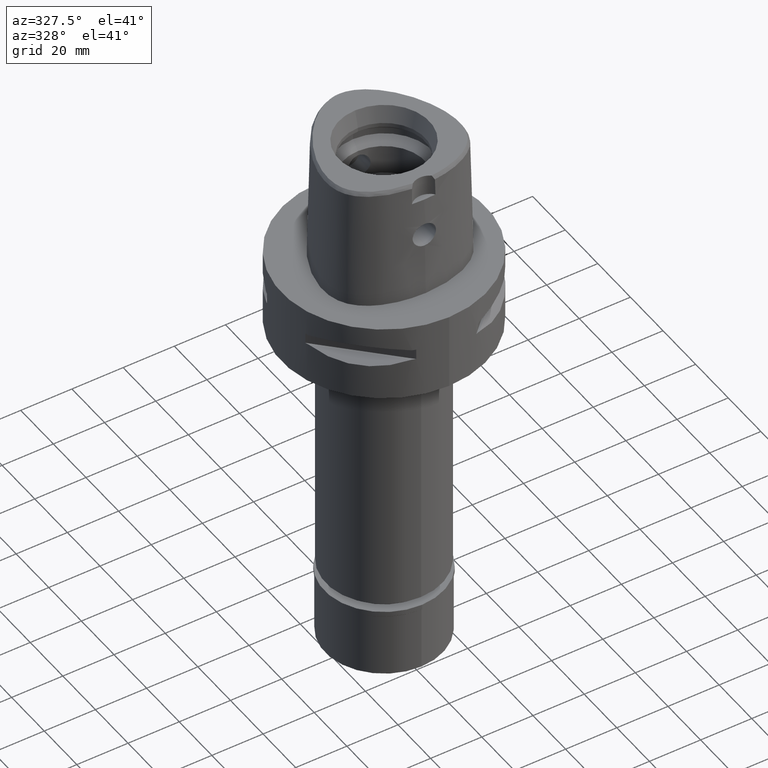
[diagram: clean part render]
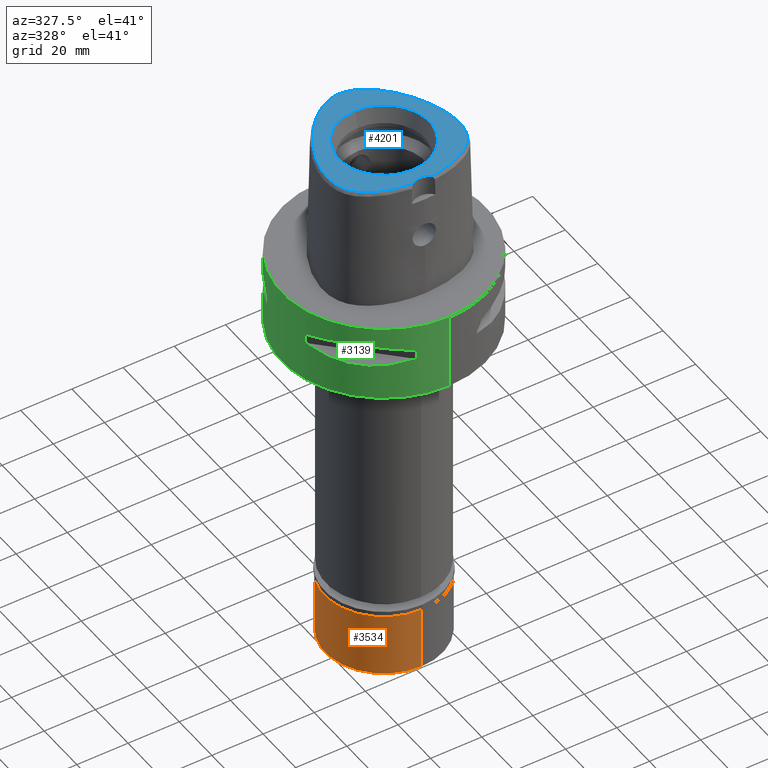
[diagram: same view with three faces highlighted in distinct colors, each labeled with its STEP entity id]
A machine part, auxiliary view with three faces highlighted in distinct colors.
Their STEP definitions:

[orange] entity #3534 — the highlighted cylindrical surface (partial cylindrical patch) has radius 23 mm, axis along (0, 0, -1).
#153 = VECTOR ( 'NONE', #3823, 1000.000000000000000 ) ;
#252 = AXIS2_PLACEMENT_3D ( 'NONE', #2304, #4308, #3142 ) ;
#295 = EDGE_CURVE ( 'NONE', #3012, #4341, #2491, .T. ) ;
#390 = VERTEX_POINT ( 'NONE', #1970 ) ;
#415 = CARTESIAN_POINT ( 'NONE',  ( 0.0000000000000000000, 0.0000000000000000000, 0.0000000000000000000 ) ) ;
#473 = LINE ( 'NONE', #1741, #826 ) ;
#526 = CARTESIAN_POINT ( 'NONE',  ( 0.0000000000000000000, -23.00000000000000000, -2.299999999999999822 ) ) ;
#645 = ORIENTED_EDGE ( 'NONE', *, *, #295, .T. ) ;
#826 = VECTOR ( 'NONE', #2498, 1000.000000000000000 ) ;
#1193 = ORIENTED_EDGE ( 'NONE', *, *, #3594, .T. ) ;
#1509 = CARTESIAN_POINT ( 'NONE',  ( 0.0000000000000000000, 23.00000000000000000, -2.299999999999999822 ) ) ;
#1608 = FACE_OUTER_BOUND ( 'NONE', #1854, .T. ) ;
#1654 = CARTESIAN_POINT ( 'NONE',  ( 0.0000000000000000000, 0.0000000000000000000, -2.299999999999999822 ) ) ;
#1741 = CARTESIAN_POINT ( 'NONE',  ( 0.0000000000000000000, -23.00000000000000000, -2.299999999999999822 ) ) ;
#1854 = EDGE_LOOP ( 'NONE', ( #645, #2657, #1193, #2582 ) ) ;
#1970 = CARTESIAN_POINT ( 'NONE',  ( 0.0000000000000000000, 23.00000000000000000, -2.299999999999999822 ) ) ;
#1996 = DIRECTION ( 'NONE',  ( 0.0000000000000000000, 0.0000000000000000000, -1.000000000000000000 ) ) ;
#2262 = LINE ( 'NONE', #1509, #153 ) ;
#2304 = CARTESIAN_POINT ( 'NONE',  ( 0.0000000000000000000, 0.0000000000000000000, -27.19999999999999929 ) ) ;
#2402 = VERTEX_POINT ( 'NONE', #526 ) ;
#2407 = DIRECTION ( 'NONE',  ( 0.0000000000000000000, -1.000000000000000000, 0.0000000000000000000 ) ) ;
#2491 = CIRCLE ( 'NONE', #252, 23.00000000000000000 ) ;
#2498 = DIRECTION ( 'NONE',  ( 0.0000000000000000000, 0.0000000000000000000, -1.000000000000000000 ) ) ;
#2582 = ORIENTED_EDGE ( 'NONE', *, *, #4310, .T. ) ;
#2657 = ORIENTED_EDGE ( 'NONE', *, *, #4592, .F. ) ;
#3012 = VERTEX_POINT ( 'NONE', #3733 ) ;
#3142 = DIRECTION ( 'NONE',  ( 0.0000000000000000000, 1.000000000000000000, 0.0000000000000000000 ) ) ;
#3172 = DIRECTION ( 'NONE',  ( 0.0000000000000000000, 0.0000000000000000000, -1.000000000000000000 ) ) ;
#3197 = DIRECTION ( 'NONE',  ( 0.0000000000000000000, -1.000000000000000000, 0.0000000000000000000 ) ) ;
#3226 = AXIS2_PLACEMENT_3D ( 'NONE', #415, #1996, #3197 ) ;
#3384 = AXIS2_PLACEMENT_3D ( 'NONE', #1654, #3172, #2407 ) ;
#3427 = CARTESIAN_POINT ( 'NONE',  ( 0.0000000000000000000, -23.00000000000000000, -27.19999999999999929 ) ) ;
#3534 = ADVANCED_FACE ( 'NONE', ( #1608 ), #4339, .T. ) ;
#3594 = EDGE_CURVE ( 'NONE', #2402, #390, #4550, .T. ) ;
#3733 = CARTESIAN_POINT ( 'NONE',  ( 0.0000000000000000000, 23.00000000000000000, -27.19999999999999929 ) ) ;
#3823 = DIRECTION ( 'NONE',  ( 0.0000000000000000000, 0.0000000000000000000, -1.000000000000000000 ) ) ;
#4308 = DIRECTION ( 'NONE',  ( 0.0000000000000000000, 0.0000000000000000000, 1.000000000000000000 ) ) ;
#4310 = EDGE_CURVE ( 'NONE', #390, #3012, #2262, .T. ) ;
#4339 = CYLINDRICAL_SURFACE ( 'NONE', #3226, 23.00000000000000000 ) ;
#4341 = VERTEX_POINT ( 'NONE', #3427 ) ;
#4550 = CIRCLE ( 'NONE', #3384, 23.00000000000000000 ) ;
#4592 = EDGE_CURVE ( 'NONE', #2402, #4341, #473, .T. ) ;

[blue] entity #4201 — the highlighted planar face has unit normal (0, 0, 1).
#31 = CARTESIAN_POINT ( 'NONE',  ( 0.0000000000000000000, -28.19999999999999929, 48.00000000000000000 ) ) ;
#66 = CARTESIAN_POINT ( 'NONE',  ( -2.553408000916000200E-11, 27.58331912251000162, 48.00000000000000000 ) ) ;
#141 = CARTESIAN_POINT ( 'NONE',  ( 0.0000000000000000000, 0.0000000000000000000, 48.00000000000000000 ) ) ;
#156 = VERTEX_POINT ( 'NONE', #620 ) ;
#234 = FACE_BOUND ( 'NONE', #2580, .T. ) ;
#262 = FACE_OUTER_BOUND ( 'NONE', #3242, .T. ) ;
#272 = CARTESIAN_POINT ( 'NONE',  ( 25.78811069501077569, -5.218135357747344827, 48.00000000001030287 ) ) ;
#276 = CARTESIAN_POINT ( 'NONE',  ( -11.07816729749930929, 23.03133640519961034, 47.99999989154359525 ) ) ;
#283 = CARTESIAN_POINT ( 'NONE',  ( 18.76051936065496761, 14.48366014233059218, 48.00000000000546407 ) ) ;
#305 = CARTESIAN_POINT ( 'NONE',  ( -13.24182052358708184, 21.12501165366954226, 47.99999989154243707 ) ) ;
#311 = CARTESIAN_POINT ( 'NONE',  ( 2.897393261679814369, 27.25600202852963250, 48.00000000000315481 ) ) ;
#327 = CARTESIAN_POINT ( 'NONE',  ( -0.6921675462037146787, 27.57027408819114456, 47.99999989155035962 ) ) ;
#356 = CARTESIAN_POINT ( 'NONE',  ( -18.05758775925919224, -19.36077720060000118, 47.99999989154387237 ) ) ;
#366 = CARTESIAN_POINT ( 'NONE',  ( -2.553408000916000200E-11, 27.58331912251000162, 48.00000000000000000 ) ) ;
#380 = CARTESIAN_POINT ( 'NONE',  ( -24.34597377292386611, 2.947766337442287554, 47.99999989155365654 ) ) ;
#437 = ORIENTED_EDGE ( 'NONE', *, *, #4076, .F. ) ;
#620 = CARTESIAN_POINT ( 'NONE',  ( -2.553408000916000200E-11, 27.58331912251000162, 48.00000000000000000 ) ) ;
#638 = CARTESIAN_POINT ( 'NONE',  ( 18.95779336837279061, -18.80349047535169404, 47.99999999999837286 ) ) ;
#664 = CARTESIAN_POINT ( 'NONE',  ( 24.00708073425739641, -13.59389763843381438, 48.00000000000548539 ) ) ;
#668 = CARTESIAN_POINT ( 'NONE',  ( -25.72853648137682825, -4.045150052247693750, 47.99999989154359525 ) ) ;
#676 = CARTESIAN_POINT ( 'NONE',  ( 15.47311546589656750, 18.77848662925240575, 48.00000000000954969 ) ) ;
#697 = CARTESIAN_POINT ( 'NONE',  ( 13.54089058450360206, -21.43147460488999911, 48.00000000000750333 ) ) ;
#703 = CARTESIAN_POINT ( 'NONE',  ( -22.82072897609825191, -15.36398919472365243, 47.99999989155429603 ) ) ;
#722 = CARTESIAN_POINT ( 'NONE',  ( 25.74155027847912081, -7.352132003089617562, 48.00000000000655831 ) ) ;
#726 = CARTESIAN_POINT ( 'NONE',  ( -14.81597511674961609, -20.94671108369584545, 47.99999989154834878 ) ) ;
#753 = CARTESIAN_POINT ( 'NONE',  ( -25.64644816632383240, -8.319642756805352590, 47.99999989155597291 ) ) ;
#762 = CARTESIAN_POINT ( 'NONE',  ( 6.204805495150236716, 26.11047595223866580, 48.00000000000643041 ) ) ;
#777 = CARTESIAN_POINT ( 'NONE',  ( -23.65469628750009434, -14.19111720707244473, 47.99999989154406421 ) ) ;
#940 = CARTESIAN_POINT ( 'NONE',  ( -3.692743043259536062, -23.43666984813252085, 47.99999989154942170 ) ) ;
#1015 = CARTESIAN_POINT ( 'NONE',  ( 4.358863301034117121, -23.38302754646448633, 48.00000000000235900 ) ) ;
#1041 = CARTESIAN_POINT ( 'NONE',  ( 9.079666835764102828, -22.67647771863658690, 48.00000000000904521 ) ) ;
#1043 = EDGE_CURVE ( 'NONE', #4647, #156, #2283, .T. ) ;
#1070 = CARTESIAN_POINT ( 'NONE',  ( 22.82172265263875843, -15.36274108901901414, 48.00000000000872546 ) ) ;
#1073 = CARTESIAN_POINT ( 'NONE',  ( -8.052265373553151306, 25.13651240860413338, 47.99999989154584057 ) ) ;
#1096 = CARTESIAN_POINT ( 'NONE',  ( 25.64658655008155463, -8.318518488027498492, 48.00000000000997602 ) ) ;
#1100 = CARTESIAN_POINT ( 'NONE',  ( -9.073991149390218780, -22.67767910056250358, 47.99999989154857616 ) ) ;
#1129 = CARTESIAN_POINT ( 'NONE',  ( -25.33661155865838310, -10.07113709945034508, 47.99999989155182334 ) ) ;
#1131 = ORIENTED_EDGE ( 'NONE', *, *, #1043, .F. ) ;
#1137 = CARTESIAN_POINT ( 'NONE',  ( 10.03889926273885358, 23.82643791975726799, 48.00000000000925127 ) ) ;
#1158 = CARTESIAN_POINT ( 'NONE',  ( -21.17991842371934297, -17.09989885653236286, 47.99999989154785140 ) ) ;
#1183 = CARTESIAN_POINT ( 'NONE',  ( -25.51017847208134270, -9.223923988778690131, 47.99999989154590452 ) ) ;
#1217 = CARTESIAN_POINT ( 'NONE',  ( 8.053467330374518340, 25.13580020532509707, 48.00000000000429878 ) ) ;
#1220 = ORIENTED_EDGE ( 'NONE', *, *, #3521, .F. ) ;
#1403 = EDGE_CURVE ( 'NONE', #156, #3429, #2087, .T. ) ;
#1414 = CARTESIAN_POINT ( 'NONE',  ( 3.652533226355999751, -23.43985283522000174, 48.00000000000000000 ) ) ;
#1472 = CARTESIAN_POINT ( 'NONE',  ( -20.74831943888041152, 11.24670205872383377, 47.99999989154577662 ) ) ;
#1482 = CARTESIAN_POINT ( 'NONE',  ( 0.0000000000000000000, 0.0000000000000000000, 48.00000000000000000 ) ) ;
#1492 = CARTESIAN_POINT ( 'NONE',  ( 25.14129527416538679, -0.06715740301616547614, 48.00000000000380851 ) ) ;
#1496 = CARTESIAN_POINT ( 'NONE',  ( -2.139154079423656540, 27.40627714259406034, 47.99999989155147517 ) ) ;
#1501 = DIRECTION ( 'NONE',  ( 0.0000000000000000000, 0.0000000000000000000, 1.000000000000000000 ) ) ;
#1503 = CARTESIAN_POINT ( 'NONE',  ( 23.18188527998128023, 6.195157684107064355, 47.99999999999729283 ) ) ;
#1524 = CARTESIAN_POINT ( 'NONE',  ( -25.79049895550798155, -6.320436012648766422, 47.99999989154613900 ) ) ;
#1553 = CARTESIAN_POINT ( 'NONE',  ( -15.99341640723197422, -20.43562453268179624, 47.99999989154596847 ) ) ;
#1577 = CARTESIAN_POINT ( 'NONE',  ( -22.32985290020997127, -15.94550435140913436, 47.99999989155075752 ) ) ;
#1604 = CARTESIAN_POINT ( 'NONE',  ( 0.6937438505404001088, 27.57019898701117810, 48.00000000000048317 ) ) ;
#1644 = VERTEX_POINT ( 'NONE', #3987 ) ;
#1796 = CARTESIAN_POINT ( 'NONE',  ( 7.396182376303173100, -22.99483633013843686, 48.00000000000543565 ) ) ;
#1870 = CARTESIAN_POINT ( 'NONE',  ( -4.354443967910656355, -23.38344545185311318, 47.99999989155269020 ) ) ;
#1878 = CARTESIAN_POINT ( 'NONE',  ( 21.64191216433889764, 9.570096010442398438, 48.00000000000968470 ) ) ;
#1891 = CARTESIAN_POINT ( 'NONE',  ( 25.60516200877437853, -2.794192459352446534, 47.99999999999684519 ) ) ;
#1895 = CARTESIAN_POINT ( 'NONE',  ( -6.203520504841722349, 26.11107310365323997, 47.99999989154502344 ) ) ;
#1921 = CARTESIAN_POINT ( 'NONE',  ( -0.2321695353048564836, 27.58331918327152721, 47.99999989154605373 ) ) ;
#1926 = CARTESIAN_POINT ( 'NONE',  ( 14.35433142683209518, 20.00604447574972156, 47.99999999999845812 ) ) ;
#1944 = CARTESIAN_POINT ( 'NONE',  ( -5.621443929425820940, -23.25305014161141415, 47.99999989155013225 ) ) ;
#1963 = CARTESIAN_POINT ( 'NONE',  ( -23.18199744456470413, 6.194888204101283158, 47.99999989154883195 ) ) ;
#2087 = B_SPLINE_CURVE_WITH_KNOTS ( 'NONE', 3,
 ( #366, #3518, #1604, #2704, #3066, #311, #2305, #2280, #4650, #762, #5104, #1217, #3477, #1137, #3499, #4204, #3872, #1926, #676, #2254, #4677, #283, #2330, #3903, #1878, #5009, #1503, #3436, #2948, #3407, #1492, #4170, #1891, #2598, #272, #4581, #722, #1096, #2296, #3024, #3056, #3001, #5024, #2648, #664, #4637, #4220, #1070, #4248, #3352, #4190, #4971, #2622, #638, #2272, #2217, #4558, #3860, #697, #3832, #2240, #1041, #1796, #3330, #1015, #4921, #1414 ),
 .UNSPECIFIED., .F., .F.,
 ( 4, 1, 1, 1, 1, 1, 1, 1, 1, 1, 1, 1, 1, 1, 1, 1, 1, 1, 1, 1, 1, 1, 1, 1, 1, 1, 1, 1, 1, 1, 1, 1, 1, 1, 1, 1, 1, 1, 1, 1, 1, 1, 1, 1, 1, 1, 1, 1, 1, 1, 1, 1, 1, 1, 1, 1, 1, 1, 1, 1, 1, 1, 1, 1, 4 ),
 ( 0.0000000000000000000, 0.01585579672639991777, 0.03171159345210006197, 0.04756739017779998413, 0.06342318690360004840, 0.07927898362929997056, 0.09513478035499989272, 0.1109905770807000369, 0.1268463738063999591, 0.1427021705320999923, 0.1585579672578999455, 0.1744137639835999787, 0.1902695607093000119, 0.2061253574349999340, 0.2219811541607000782, 0.2378369508864000004, 0.2536927476120999225, 0.2695485443380000179, 0.2854043410636999401, 0.3012601377893999732, 0.3171159345151000064, 0.3329717312407999286, 0.3488275279665000728, 0.3646833246923000260, 0.3805391214179999482, 0.3963949181436999813, 0.4122507148694000145, 0.4281065115951000477, 0.4439623083207999699, 0.4598181050465000030, 0.4756739017723000673, 0.4915296984979999895, 0.5073854952237000226, 0.5232412919494000558, 0.5390970886750999780, 0.5549528854007999001, 0.5708086821265999644, 0.5866644788522999976, 0.6025202755780000308, 0.6183760723036999529, 0.6342318690293999861, 0.6500876657551999394, 0.6659434624808999725, 0.6817992592067000368, 0.6976550559323999590, 0.7135108526580999921, 0.7293666493838000253, 0.7452224461095000585, 0.7610782428351999807, 0.7769340395610000449, 0.7927898362866999671, 0.8086456330124000003, 0.8245014297380999224, 0.8403572264637999556, 0.8562130231894999888, 0.8720688199152000220, 0.8879246166409999752, 0.9037804133667199924, 0.9196362100924300176, 0.9354920068181400428, 0.9513478035438499569, 0.9672036002695799661, 0.9830593969952899913, 0.9989151937210170029, 1.000000000000000000 ),
 .UNSPECIFIED. ) ;
#2217 = CARTESIAN_POINT ( 'NONE',  ( 17.07549476911984598, -19.90378693825791245, 48.00000000000670752 ) ) ;
#2222 = CIRCLE ( 'NONE', #3198, 17.71487483155999954 ) ;
#2240 = CARTESIAN_POINT ( 'NONE',  ( 10.66892483387170465, -22.30459704282475997, 48.00000000000795097 ) ) ;
#2243 = CARTESIAN_POINT ( 'NONE',  ( -25.14146668155521525, -0.06794040015557170631, 47.99999989154625979 ) ) ;
#2250 = CARTESIAN_POINT ( 'NONE',  ( 0.0000000000000000000, 0.0000000000000000000, 48.00000000000000000 ) ) ;
#2254 = CARTESIAN_POINT ( 'NONE',  ( 16.58774972841750639, 17.44522137221457214, 48.00000000000481748 ) ) ;
#2257 = ORIENTED_EDGE ( 'NONE', *, *, #4551, .F. ) ;
#2260 = CARTESIAN_POINT ( 'NONE',  ( 3.652533226355999751, -23.43985283522000174, 48.00000000000000000 ) ) ;
#2272 = CARTESIAN_POINT ( 'NONE',  ( 18.06021793802886677, -19.35923481219660758, 47.99999999999698730 ) ) ;
#2275 = CARTESIAN_POINT ( 'NONE',  ( -21.78463115992202859, -16.52397196141762592, 47.99999989154731139 ) ) ;
#2280 = CARTESIAN_POINT ( 'NONE',  ( 4.491298471527731095, 26.80158405532001709, 48.00000000000701306 ) ) ;
#2283 = B_SPLINE_CURVE_WITH_KNOTS ( 'NONE', 3,
 ( #3775, #940, #1870, #1944, #3891, #1100, #4193, #2727, #4694, #726, #1553, #5077, #356, #3084, #3494, #4670, #1158, #2275, #1577, #703, #3469, #777, #4642, #3112, #5055, #2678, #2700, #1129, #1183, #753, #3865, #1524, #4301, #668, #4277, #3920, #2243, #2350, #380, #2652, #1963, #4976, #3808, #1472, #3441, #3005, #4251, #4227, #2300, #3837, #305, #2325, #276, #4586, #5001, #1073, #5028, #1895, #2625, #3030, #3059, #3412, #1496, #4610, #327, #1921, #66 ),
 .UNSPECIFIED., .F., .F.,
 ( 4, 1, 1, 1, 1, 1, 1, 1, 1, 1, 1, 1, 1, 1, 1, 1, 1, 1, 1, 1, 1, 1, 1, 1, 1, 1, 1, 1, 1, 1, 1, 1, 1, 1, 1, 1, 1, 1, 1, 1, 1, 1, 1, 1, 1, 1, 1, 1, 1, 1, 1, 1, 1, 1, 1, 1, 1, 1, 1, 1, 1, 1, 1, 1, 4 ),
 ( 0.0000000000000000000, 0.001025268811260899139, 0.01688201057616143738, 0.03273875234116200433, 0.04859549410606276570, 0.06445223587096329809, 0.08030897763586383742, 0.09616571940076459879, 0.1120224611656651381, 0.1278792029306657085, 0.1437359446954664388, 0.1595926864603670892, 0.1754494282252676285, 0.1913061699901682788, 0.2071629117550689292, 0.2230196535199694685, 0.2388763952849701500, 0.2547331370498707726, 0.2705898788147714229, 0.2864466205796719622, 0.3023033623444725815, 0.3181601041093733429, 0.3340168458743739133, 0.3498735876392744526, 0.3657303294041751029, 0.3815870711690757533, 0.3974438129339764036, 0.4133005546988770540, 0.4291572964637775933, 0.4450140382287782748, 0.4608707799935788940, 0.4767275217584794333, 0.4925842635233800837, 0.5084410052882807340, 0.5242977470531813289, 0.5401544888181819548, 0.5560112305830825496, 0.5718679723479832555, 0.5877247141128837393, 0.6035814558776845251, 0.6194381976425851200, 0.6352949394074857148, 0.6511516811724863407, 0.6670084229373869356, 0.6828651647022875304, 0.6987219064671882363, 0.7145786482320887201, 0.7304353899969894259, 0.7462921317619900519, 0.7621488735267907266, 0.7780056152916913215, 0.7938623570565920273, 0.8097190988214925111, 0.8255758405863932170, 0.8414325823512937008, 0.8572893241162944378, 0.8731460658811950326, 0.8890028076460957385, 0.9048595494109562543, 0.9207162911758569601, 0.9365730329407675470, 0.9524297747056681418, 0.9682865164705787286, 0.9841432582354794345, 1.000000000000000000 ),
 .UNSPECIFIED. ) ;
#2296 = CARTESIAN_POINT ( 'NONE',  ( 25.51037851176818450, -9.222789616918133149, 48.00000000000625988 ) ) ;
#2300 = CARTESIAN_POINT ( 'NONE',  ( -15.47246039022713049, 18.77924036481923054, 47.99999989155017488 ) ) ;
#2305 = CARTESIAN_POINT ( 'NONE',  ( 3.680297990136409680, 27.05591354500147361, 48.00000000000277822 ) ) ;
#2325 = CARTESIAN_POINT ( 'NONE',  ( -12.14717628347868761, 22.13270366860911764, 47.99999989154949986 ) ) ;
#2330 = CARTESIAN_POINT ( 'NONE',  ( 19.78466709479834762, 12.88995995781772486, 48.00000000000225953 ) ) ;
#2350 = CARTESIAN_POINT ( 'NONE',  ( -24.78798707782388888, 1.406367717935124606, 47.99999989154259339 ) ) ;
#2430 = VERTEX_POINT ( 'NONE', #3373 ) ;
#2471 = CARTESIAN_POINT ( 'NONE',  ( -3.652518131190999995, -23.43984125250999995, 48.00000000000000000 ) ) ;
#2580 = EDGE_LOOP ( 'NONE', ( #2257, #437 ) ) ;
#2598 = CARTESIAN_POINT ( 'NONE',  ( 25.72845965679763225, -4.044145215521690595, 48.00000000000729727 ) ) ;
#2622 = CARTESIAN_POINT ( 'NONE',  ( 19.77345709183594380, -18.23990985540147136, 48.00000000000212452 ) ) ;
#2625 = CARTESIAN_POINT ( 'NONE',  ( -5.330667525977220933, 26.48886324096399392, 47.99999989154546398 ) ) ;
#2648 = CARTESIAN_POINT ( 'NONE',  ( 24.32795549673617685, -12.97211154200615368, 48.00000000000683542 ) ) ;
#2652 = CARTESIAN_POINT ( 'NONE',  ( -23.81131857987310596, 4.547972324538405609, 47.99999989154929381 ) ) ;
#2678 = CARTESIAN_POINT ( 'NONE',  ( -24.89056295155208431, -11.61105476091908173, 47.99999989154898117 ) ) ;
#2700 = CARTESIAN_POINT ( 'NONE',  ( -25.12916467350478911, -10.86541652631006016, 47.99999989154825641 ) ) ;
#2704 = CARTESIAN_POINT ( 'NONE',  ( 1.407937999592518308, 27.50970958195426164, 48.00000000000311218 ) ) ;
#2727 = CARTESIAN_POINT ( 'NONE',  ( -12.15213728769495027, -21.88854764582521994, 47.99999989154994751 ) ) ;
#2865 = CIRCLE ( 'NONE', #4771, 17.71487483155999954 ) ;
#2913 = DIRECTION ( 'NONE',  ( 0.0000000000000000000, 0.0000000000000000000, 1.000000000000000000 ) ) ;
#2948 = CARTESIAN_POINT ( 'NONE',  ( 24.34579675531484355, 2.948329282943651375, 48.00000000001240608 ) ) ;
#2978 = CIRCLE ( 'NONE', #3709, 6.000000000000002665 ) ;
#3001 = CARTESIAN_POINT ( 'NONE',  ( 24.89096213678572411, -11.60991207239314704, 48.00000000000372324 ) ) ;
#3005 = CARTESIAN_POINT ( 'NONE',  ( -18.76020596343064639, 14.48413074765705488, 47.99999989155379154 ) ) ;
#3024 = CARTESIAN_POINT ( 'NONE',  ( 25.33687583872038118, -10.06999584063622599, 48.00000000000986233 ) ) ;
#3030 = CARTESIAN_POINT ( 'NONE',  ( -4.489954072252683837, 26.80204645004269537, 47.99999989154972724 ) ) ;
#3056 = CARTESIAN_POINT ( 'NONE',  ( 25.12949508357326067, -10.86427360166696765, 48.00000000000261480 ) ) ;
#3059 = CARTESIAN_POINT ( 'NONE',  ( -3.678923666156120653, 27.05630549676262575, 47.99999989154323288 ) ) ;
#3066 = CARTESIAN_POINT ( 'NONE',  ( 2.140583849880796752, 27.40603513869564622, 48.00000000000197531 ) ) ;
#3084 = CARTESIAN_POINT ( 'NONE',  ( -18.95547948968486551, -18.80500692591610346, 47.99999989155070068 ) ) ;
#3112 = CARTESIAN_POINT ( 'NONE',  ( -24.32740981358328369, -12.97324847097881495, 47.99999989154701296 ) ) ;
#3119 = AXIS2_PLACEMENT_3D ( 'NONE', #1482, #2913, #3344 ) ;
#3148 = DIRECTION ( 'NONE',  ( 0.6087555377260667200, 0.7933578607966567109, 0.0000000000000000000 ) ) ;
#3198 = AXIS2_PLACEMENT_3D ( 'NONE', #2250, #1501, #4981 ) ;
#3242 = EDGE_LOOP ( 'NONE', ( #3644, #1131, #1220 ) ) ;
#3330 = CARTESIAN_POINT ( 'NONE',  ( 5.628119991153166524, -23.25222728397323380, 48.00000000000203926 ) ) ;
#3344 = DIRECTION ( 'NONE',  ( 1.000000000000000000, 0.0000000000000000000, 0.0000000000000000000 ) ) ;
#3352 = CARTESIAN_POINT ( 'NONE',  ( 21.78596494080893464, -16.52262878099942256, 48.00000000000324007 ) ) ;
#3373 = CARTESIAN_POINT ( 'NONE',  ( 0.0000000000000000000, 17.71487483155999954, 48.00000000000000000 ) ) ;
#3398 = PLANE ( 'NONE',  #3119 ) ;
#3407 = CARTESIAN_POINT ( 'NONE',  ( 24.78780591084509410, 1.407047860335654432, 48.00000000000364508 ) ) ;
#3412 = CARTESIAN_POINT ( 'NONE',  ( -2.895995696985563139, 27.25632074973344032, 47.99999989155089253 ) ) ;
#3429 = VERTEX_POINT ( 'NONE', #2260 ) ;
#3436 = CARTESIAN_POINT ( 'NONE',  ( 23.81116373424766763, 4.548397580874744328, 48.00000000000753886 ) ) ;
#3441 = CARTESIAN_POINT ( 'NONE',  ( -19.78446223014758232, 12.89029831087177769, 47.99999989154490976 ) ) ;
#3469 = CARTESIAN_POINT ( 'NONE',  ( -23.26140421483839660, -14.77902315061424687, 47.99999989154704849 ) ) ;
#3477 = CARTESIAN_POINT ( 'NONE',  ( 9.029067995420543724, 24.52649931750330126, 48.00000000000677147 ) ) ;
#3494 = CARTESIAN_POINT ( 'NONE',  ( -19.77143228739178582, -18.24138901679112479, 47.99999989154868274 ) ) ;
#3499 = CARTESIAN_POINT ( 'NONE',  ( 11.07918744941519407, 23.03051546725512466, 48.00000000000048317 ) ) ;
#3518 = CARTESIAN_POINT ( 'NONE',  ( 0.2325907962420927511, 27.58331912251426843, 48.00000000000074607 ) ) ;
#3521 = EDGE_CURVE ( 'NONE', #3429, #4647, #2978, .T. ) ;
#3603 = DIRECTION ( 'NONE',  ( 0.0000000000000000000, -1.000000000000000000, 0.0000000000000000000 ) ) ;
#3644 = ORIENTED_EDGE ( 'NONE', *, *, #1403, .F. ) ;
#3709 = AXIS2_PLACEMENT_3D ( 'NONE', #31, #4800, #3148 ) ;
#3775 = CARTESIAN_POINT ( 'NONE',  ( -3.652518131190999995, -23.43984125250999995, 48.00000000000000000 ) ) ;
#3808 = CARTESIAN_POINT ( 'NONE',  ( -21.64189927737425734, 9.570126814334329879, 47.99999989154745350 ) ) ;
#3832 = CARTESIAN_POINT ( 'NONE',  ( 12.15683615293934317, -21.88711351950879447, 47.99999999999807443 ) ) ;
#3837 = CARTESIAN_POINT ( 'NONE',  ( -14.35357216527916968, 20.00684529595488925, 47.99999989154799351 ) ) ;
#3860 = CARTESIAN_POINT ( 'NONE',  ( 14.81975810291236861, -20.94516920634992374, 48.00000000000652989 ) ) ;
#3865 = CARTESIAN_POINT ( 'NONE',  ( -25.74147111941698185, -7.353240452848993414, 47.99999989154763114 ) ) ;
#3872 = CARTESIAN_POINT ( 'NONE',  ( 13.24267791556073703, 21.12418368644020106, 48.00000000000170530 ) ) ;
#3891 = CARTESIAN_POINT ( 'NONE',  ( -7.390055783625681052, -22.99586664603135588, 47.99999989154946434 ) ) ;
#3903 = CARTESIAN_POINT ( 'NONE',  ( 20.74842146925774600, 11.24651447313534192, 48.00000000000663647 ) ) ;
#3920 = CARTESIAN_POINT ( 'NONE',  ( -25.41186340286378709, -1.469639842580217293, 47.99999989155043068 ) ) ;
#3987 = CARTESIAN_POINT ( 'NONE',  ( 0.0000000000000000000, -17.71487483155999954, 48.00000000000000000 ) ) ;
#4076 = EDGE_CURVE ( 'NONE', #2430, #1644, #2222, .T. ) ;
#4170 = CARTESIAN_POINT ( 'NONE',  ( 25.41171405094670988, -1.468769615952949525, 48.00000000001017497 ) ) ;
#4190 = CARTESIAN_POINT ( 'NONE',  ( 21.18145661121694090, -17.09850743469731071, 48.00000000000087397 ) ) ;
#4193 = CARTESIAN_POINT ( 'NONE',  ( -10.66374420216777885, -22.30593193415505837, 47.99999989154447633 ) ) ;
#4201 = ADVANCED_FACE ( 'NONE', ( #262, #234 ), #3398, .T. ) ;
#4204 = CARTESIAN_POINT ( 'NONE',  ( 12.14811716929414409, 22.13187320259073587, 48.00000000000008527 ) ) ;
#4220 = CARTESIAN_POINT ( 'NONE',  ( 23.26225374360353015, -14.77782433121205230, 48.00000000000701306 ) ) ;
#4227 = CARTESIAN_POINT ( 'NONE',  ( -16.58720419186970929, 17.44590654484196435, 47.99999989154244417 ) ) ;
#4248 = CARTESIAN_POINT ( 'NONE',  ( 22.33100613406902113, -15.94420923685701830, 48.00000000000406430 ) ) ;
#4251 = CARTESIAN_POINT ( 'NONE',  ( -17.68810264227880324, 16.01016823240033915, 47.99999989154886748 ) ) ;
#4277 = CARTESIAN_POINT ( 'NONE',  ( -25.60527917835326051, -2.795135540823627807, 47.99999989155009672 ) ) ;
#4301 = CARTESIAN_POINT ( 'NONE',  ( -25.78814006158493299, -5.219183130498007195, 47.99999989155210756 ) ) ;
#4448 = DIRECTION ( 'NONE',  ( 0.0000000000000000000, 0.0000000000000000000, 1.000000000000000000 ) ) ;
#4551 = EDGE_CURVE ( 'NONE', #1644, #2430, #2865, .T. ) ;
#4558 = CARTESIAN_POINT ( 'NONE',  ( 15.99678577414755765, -20.43406366493020343, 48.00000000000654410 ) ) ;
#4581 = CARTESIAN_POINT ( 'NONE',  ( 25.79052179444943960, -6.319355031379529919, 48.00000000000984812 ) ) ;
#4586 = CARTESIAN_POINT ( 'NONE',  ( -10.03780482747122882, 23.82723756440193341, 47.99999989155288205 ) ) ;
#4610 = CARTESIAN_POINT ( 'NONE',  ( -1.406513452557826671, 27.50987734484228042, 47.99999989155423208 ) ) ;
#4637 = CARTESIAN_POINT ( 'NONE',  ( 23.65541542675467568, -14.18997106324552782, 48.00000000000583356 ) ) ;
#4642 = CARTESIAN_POINT ( 'NONE',  ( -24.00645948962853993, -13.59502452682690965, 47.99999989155102753 ) ) ;
#4647 = VERTEX_POINT ( 'NONE', #2471 ) ;
#4650 = CARTESIAN_POINT ( 'NONE',  ( 5.331982176209535851, 26.48833275828323863, 48.00000000000349587 ) ) ;
#4670 = CARTESIAN_POINT ( 'NONE',  ( -20.51077227756393739, -17.67263106850764487, 47.99999989154829905 ) ) ;
#4677 = CARTESIAN_POINT ( 'NONE',  ( 17.68852893097982459, 16.00958332231913062, 48.00000000000669331 ) ) ;
#4694 = CARTESIAN_POINT ( 'NONE',  ( -13.53666235759093084, -21.43297591053495310, 47.99999989154176205 ) ) ;
#4771 = AXIS2_PLACEMENT_3D ( 'NONE', #141, #4448, #3603 ) ;
#4800 = DIRECTION ( 'NONE',  ( 0.0000000000000000000, 0.0000000000000000000, 1.000000000000000000 ) ) ;
#4921 = CARTESIAN_POINT ( 'NONE',  ( 3.695072017993003666, -23.43648746218564582, 48.00000000000355271 ) ) ;
#4971 = CARTESIAN_POINT ( 'NONE',  ( 20.51253914624976460, -17.67119446945791239, 47.99999999999925393 ) ) ;
#4976 = CARTESIAN_POINT ( 'NONE',  ( -22.45665633752945567, 7.877471304881741965, 47.99999989154459712 ) ) ;
#4981 = DIRECTION ( 'NONE',  ( 0.0000000000000000000, 1.000000000000000000, 0.0000000000000000000 ) ) ;
#5001 = CARTESIAN_POINT ( 'NONE',  ( -9.027913678745202120, 24.52726124218945003, 47.99999989154375157 ) ) ;
#5009 = CARTESIAN_POINT ( 'NONE',  ( 22.45659887780814756, 7.877591736060618466, 48.00000000000390088 ) ) ;
#5024 = CARTESIAN_POINT ( 'NONE',  ( 24.62320007856516924, -12.31148373401116558, 48.00000000000144951 ) ) ;
#5028 = CARTESIAN_POINT ( 'NONE',  ( -7.110865831368415435, 25.66222329672876867, 47.99999989155257651 ) ) ;
#5055 = CARTESIAN_POINT ( 'NONE',  ( -24.62272935220159198, -12.31262435360661200, 47.99999989154276392 ) ) ;
#5077 = CARTESIAN_POINT ( 'NONE',  ( -17.07251349208959468, -19.90534504494402412, 47.99999989154622426 ) ) ;
#5104 = CARTESIAN_POINT ( 'NONE',  ( 7.112111422625166490, 25.66156608519721871, 48.00000000000341771 ) ) ;

[green] entity #3139 — the highlighted cylindrical surface (partial cylindrical patch) has radius 40 mm, axis along (0, 0, -1).
#2 = CARTESIAN_POINT ( 'NONE',  ( -37.74622163926999718, 13.23717311056000057, -9.950000000002001244 ) ) ;
#45 = CARTESIAN_POINT ( 'NONE',  ( -21.56243030661795146, 33.69065616467040769, -8.206905653909847942 ) ) ;
#48 = EDGE_CURVE ( 'NONE', #866, #1758, #4953, .T. ) ;
#60 = CARTESIAN_POINT ( 'NONE',  ( -11.76033600280999991, -38.23211342708000160, -14.05000000000000071 ) ) ;
#64 = DIRECTION ( 'NONE',  ( -0.2940084000702865574, 0.9558028356769561196, 0.0000000000000000000 ) ) ;
#85 = DIRECTION ( 'NONE',  ( 0.0000000000000000000, 0.0000000000000000000, 1.000000000000000000 ) ) ;
#101 = CIRCLE ( 'NONE', #1203, 40.00000000000000000 ) ;
#112 = CARTESIAN_POINT ( 'NONE',  ( -14.69039122918836426, 37.23659447744591233, -14.43521939501172469 ) ) ;
#116 = EDGE_CURVE ( 'NONE', #3617, #3472, #4456, .T. ) ;
#126 = CARTESIAN_POINT ( 'NONE',  ( 0.0000000000000000000, 40.00000000000000000, 0.0000000000000000000 ) ) ;
#136 = CARTESIAN_POINT ( 'NONE',  ( 0.0000000000000000000, -40.00000000000000000, 0.0000000000000000000 ) ) ;
#140 = DIRECTION ( 'NONE',  ( 0.0000000000000000000, 0.0000000000000000000, 1.000000000000000000 ) ) ;
#168 = CARTESIAN_POINT ( 'NONE',  ( 0.0000000000000000000, 40.00000000000000000, 0.0000000000000000000 ) ) ;
#176 = ORIENTED_EDGE ( 'NONE', *, *, #391, .F. ) ;
#188 = CARTESIAN_POINT ( 'NONE',  ( -21.46607685731510529, -33.75216276490058931, -8.221131820471816454 ) ) ;
#202 = DIRECTION ( 'NONE',  ( -0.9436555409818374596, 0.3309293277639132058, 0.0000000000000000000 ) ) ;
#265 = AXIS2_PLACEMENT_3D ( 'NONE', #4159, #3123, #765 ) ;
#293 = CARTESIAN_POINT ( 'NONE',  ( -21.20128033780147092, -33.91944728533194109, -8.260940927396863032 ) ) ;
#294 = DIRECTION ( 'NONE',  ( 0.0000000000000000000, 0.0000000000000000000, 1.000000000000000000 ) ) ;
#303 = CARTESIAN_POINT ( 'NONE',  ( -16.14402792110914930, -36.72682052670094777, -14.82054974552934468 ) ) ;
#309 = CARTESIAN_POINT ( 'NONE',  ( -33.79139713908573839, 21.40429668490300585, -8.230336104055121282 ) ) ;
#336 = CARTESIAN_POINT ( 'NONE',  ( -33.79139713908553944, -21.40429668490394732, -15.76966389594752016 ) ) ;
#365 = CARTESIAN_POINT ( 'NONE',  ( -34.09685321779600997, -20.91613153242858658, -15.69507322893076662 ) ) ;
#372 = ORIENTED_EDGE ( 'NONE', *, *, #2203, .T. ) ;
#387 = CARTESIAN_POINT ( 'NONE',  ( -30.34851826271897224, -26.21995747454407422, -16.33009976522122741 ) ) ;
#391 = EDGE_CURVE ( 'NONE', #1562, #2403, #4804, .T. ) ;
#399 = EDGE_CURVE ( 'NONE', #729, #4408, #4543, .T. ) ;
#410 = CARTESIAN_POINT ( 'NONE',  ( -21.50560509406269460, -33.72697758561022852, -15.78472370821745407 ) ) ;
#444 = ORIENTED_EDGE ( 'NONE', *, *, #3526, .T. ) ;
#445 = CARTESIAN_POINT ( 'NONE',  ( -33.71529052282350136, 21.52391145898932123, -15.78742602700011410 ) ) ;
#462 = DIRECTION ( 'NONE',  ( -0.2940084000702865574, -0.9558028356769561196, 0.0000000000000000000 ) ) ;
#482 = CARTESIAN_POINT ( 'NONE',  ( -18.89342208876537654, 35.39137327284950629, -8.602208844105440733 ) ) ;
#531 = DIRECTION ( 'NONE',  ( 0.0000000000000000000, 0.0000000000000000000, -1.000000000000000000 ) ) ;
#591 = ORIENTED_EDGE ( 'NONE', *, *, #4113, .F. ) ;
#621 = VERTEX_POINT ( 'NONE', #126 ) ;
#627 = VERTEX_POINT ( 'NONE', #2801 ) ;
#657 = B_SPLINE_CURVE_WITH_KNOTS ( 'NONE', 3,
 ( #2465, #112, #1683, #4342, #1324, #4729, #1223, #2835, #3959, #2786, #2765, #1248, #843, #2411, #3223, #3248, #4806, #2074, #4414, #3202, #3983, #445, #816, #2858, #4442, #4781 ),
 .UNSPECIFIED., .F., .F.,
 ( 4, 1, 1, 1, 1, 1, 1, 2, 2, 2, 1, 1, 1, 1, 1, 1, 2, 2, 4 ),
 ( 0.0000000000000000000, 0.1250000000000191513, 0.1875000000000286160, 0.2187500000000333344, 0.2343750000000358602, 0.2421875000000370537, 0.2460937500000373590, 0.2480468750000373868, 0.2500000000000374145, 0.5000000000000354161, 0.6250000000000345279, 0.6875000000000339728, 0.7187500000000336398, 0.7343750000000335287, 0.7421875000000334177, 0.7460937500000334177, 0.7480468750000331957, 0.7500000000000330846, 1.000000000000000000 ),
 .UNSPECIFIED. ) ;
#699 = CARTESIAN_POINT ( 'NONE',  ( -13.23717311056000057, -37.74622163926999718, -14.05000000000000071 ) ) ;
#700 = VECTOR ( 'NONE', #294, 1000.000000000000000 ) ;
#707 = CARTESIAN_POINT ( 'NONE',  ( -33.82993376593478274, 21.34345216682135771, -8.239443262514674515 ) ) ;
#729 = VERTEX_POINT ( 'NONE', #1289 ) ;
#731 = CARTESIAN_POINT ( 'NONE',  ( -33.91944728533302822, 21.20128033779843690, -8.260940927397671274 ) ) ;
#741 = CIRCLE ( 'NONE', #3439, 39.99999999999999289 ) ;
#750 = EDGE_CURVE ( 'NONE', #3042, #1166, #101, .T. ) ;
#765 = DIRECTION ( 'NONE',  ( 0.0000000000000000000, -1.000000000000000000, 0.0000000000000000000 ) ) ;
#786 = CARTESIAN_POINT ( 'NONE',  ( -35.11589783529782949, -19.18269457495653185, -15.40342377741739988 ) ) ;
#787 = EDGE_CURVE ( 'NONE', #2825, #621, #942, .T. ) ;
#808 = CARTESIAN_POINT ( 'NONE',  ( -21.56243030661606852, -33.69065616467215563, -15.79309434609241869 ) ) ;
#815 = VERTEX_POINT ( 'NONE', #1774 ) ;
#816 = CARTESIAN_POINT ( 'NONE',  ( -33.72697758561022852, 21.50560509406268750, -15.78472370821743276 ) ) ;
#836 = ORIENTED_EDGE ( 'NONE', *, *, #2380, .T. ) ;
#839 = CARTESIAN_POINT ( 'NONE',  ( 0.0000000000000000000, 1.318944602681999963E-14, -14.05000000000000071 ) ) ;
#843 = CARTESIAN_POINT ( 'NONE',  ( -26.21995747455951431, 30.34851826269486708, -16.33009976521767115 ) ) ;
#866 = VERTEX_POINT ( 'NONE', #3311 ) ;
#911 = CARTESIAN_POINT ( 'NONE',  ( 0.0000000000000000000, 1.318944602681999963E-14, 0.0000000000000000000 ) ) ;
#928 = CARTESIAN_POINT ( 'NONE',  ( -13.23717311056000057, -37.74622163926999718, -9.950000000002001244 ) ) ;
#942 = CIRCLE ( 'NONE', #3893, 40.00000000000000000 ) ;
#950 = LINE ( 'NONE', #2513, #3272 ) ;
#959 = CARTESIAN_POINT ( 'NONE',  ( -14.69039122920008289, -37.23659447744216067, -9.564780604987333845 ) ) ;
#1004 = FACE_OUTER_BOUND ( 'NONE', #3977, .T. ) ;
#1008 = CARTESIAN_POINT ( 'NONE',  ( -26.21995747460128712, -30.34851826265278518, -7.669900234784755355 ) ) ;
#1083 = VERTEX_POINT ( 'NONE', #3605 ) ;
#1090 = CARTESIAN_POINT ( 'NONE',  ( -29.31642813389003521, -27.25214773986426309, -7.669859354229735970 ) ) ;
#1105 = CARTESIAN_POINT ( 'NONE',  ( -34.44518065740168566, 20.34261333235311042, -8.396860514061643244 ) ) ;
#1127 = VECTOR ( 'NONE', #531, 1000.000000000000000 ) ;
#1133 = CARTESIAN_POINT ( 'NONE',  ( -32.16767032370974988, 23.95303639237066662, -7.852701172201594915 ) ) ;
#1135 = CARTESIAN_POINT ( 'NONE',  ( -33.91944728533206188, -21.20128033780140697, -15.73905907260549064 ) ) ;
#1161 = CARTESIAN_POINT ( 'NONE',  ( -37.74622163926999718, 13.23717311056000057, -9.950000000002001244 ) ) ;
#1166 = VERTEX_POINT ( 'NONE', #3968 ) ;
#1203 = AXIS2_PLACEMENT_3D ( 'NONE', #2092, #2376, #2428 ) ;
#1216 = CARTESIAN_POINT ( 'NONE',  ( -22.55421454656086766, -33.03835700910691031, -15.93168855142837081 ) ) ;
#1223 = CARTESIAN_POINT ( 'NONE',  ( -21.20128033779905863, 33.91944728533289322, -15.73905907260483872 ) ) ;
#1235 = ORIENTED_EDGE ( 'NONE', *, *, #4869, .F. ) ;
#1248 = CARTESIAN_POINT ( 'NONE',  ( -23.95303639238277782, 32.16767032370128732, -16.14729882780219228 ) ) ;
#1260 = CARTESIAN_POINT ( 'NONE',  ( -13.23717311056000057, 37.74622163926999718, -9.950000000002001244 ) ) ;
#1286 = CARTESIAN_POINT ( 'NONE',  ( -23.60097336456494332, 32.30995221948606400, -7.938343960724202120 ) ) ;
#1289 = CARTESIAN_POINT ( 'NONE',  ( -38.23211342708000160, 11.76033600280999991, -14.05000000000000071 ) ) ;
#1321 = DIRECTION ( 'NONE',  ( 0.0000000000000000000, 0.0000000000000000000, -1.000000000000000000 ) ) ;
#1324 = CARTESIAN_POINT ( 'NONE',  ( -20.34261333235522784, 34.44518065740082591, -15.60313948594118116 ) ) ;
#1428 = FACE_BOUND ( 'NONE', #3420, .T. ) ;
#1461 = CARTESIAN_POINT ( 'NONE',  ( -20.91613153242878909, -34.09685321779589628, -8.304926771071530212 ) ) ;
#1510 = CARTESIAN_POINT ( 'NONE',  ( -16.81132763103497751, -36.35358138588212995, -9.059400529842182692 ) ) ;
#1531 = CARTESIAN_POINT ( 'NONE',  ( -36.35358138588213706, -16.81132763103370209, -14.94059947015962386 ) ) ;
#1562 = VERTEX_POINT ( 'NONE', #3464 ) ;
#1582 = CARTESIAN_POINT ( 'NONE',  ( -23.60097336452268024, -32.30995221952120744, -16.06165603927522056 ) ) ;
#1589 = DIRECTION ( 'NONE',  ( 0.0000000000000000000, 0.0000000000000000000, -1.000000000000000000 ) ) ;
#1601 = CARTESIAN_POINT ( 'NONE',  ( -21.62017158009936324, 33.65365962422595913, -8.198436652111372069 ) ) ;
#1603 = CARTESIAN_POINT ( 'NONE',  ( -33.82993376593436352, -21.34345216682292090, -15.76055673748811792 ) ) ;
#1629 = ORIENTED_EDGE ( 'NONE', *, *, #4752, .F. ) ;
#1683 = CARTESIAN_POINT ( 'NONE',  ( -16.81132763101458849, 36.35358138588883037, -14.94059947015453105 ) ) ;
#1711 = LINE ( 'NONE', #60, #3354 ) ;
#1713 = EDGE_CURVE ( 'NONE', #866, #4212, #3421, .T. ) ;
#1739 = CARTESIAN_POINT ( 'NONE',  ( -13.23717311056000057, -37.74622163926999718, -14.05000000000000071 ) ) ;
#1758 = VERTEX_POINT ( 'NONE', #3537 ) ;
#1774 = CARTESIAN_POINT ( 'NONE',  ( -38.23211342708000160, -11.76033600280999991, -14.05000000000000071 ) ) ;
#1788 = CARTESIAN_POINT ( 'NONE',  ( -23.95303639240206195, -32.16767032368193213, -7.852701172200141855 ) ) ;
#1804 = LINE ( 'NONE', #2099, #4351 ) ;
#1924 = CARTESIAN_POINT ( 'NONE',  ( -27.25214773983183036, -29.31642813391925273, -16.33014064577127655 ) ) ;
#1949 = CARTESIAN_POINT ( 'NONE',  ( -33.76566745674986691, -21.44484052678344455, -15.77571175125594394 ) ) ;
#1998 = AXIS2_PLACEMENT_3D ( 'NONE', #3410, #4999, #3027 ) ;
#2018 = CARTESIAN_POINT ( 'NONE',  ( -22.55421454658548441, 33.03835700908636142, -8.068311448572288214 ) ) ;
#2020 = CARTESIAN_POINT ( 'NONE',  ( -18.89342208872277595, -35.39137327286401558, -15.39779115588540925 ) ) ;
#2042 = CARTESIAN_POINT ( 'NONE',  ( -16.14402792115179608, 36.72682052668652375, -9.179450254461457348 ) ) ;
#2074 = CARTESIAN_POINT ( 'NONE',  ( -33.39247868354666338, 22.02254759438567788, -15.85920599531292652 ) ) ;
#2079 = CARTESIAN_POINT ( 'NONE',  ( -37.74622163926999718, 13.23717311056000057, -14.05000000000000071 ) ) ;
#2084 = CIRCLE ( 'NONE', #2574, 39.99999999999999289 ) ;
#2089 = AXIS2_PLACEMENT_3D ( 'NONE', #2159, #3708, #4062 ) ;
#2092 = CARTESIAN_POINT ( 'NONE',  ( 0.0000000000000000000, 1.318944602681999963E-14, -30.00000000000000000 ) ) ;
#2099 = CARTESIAN_POINT ( 'NONE',  ( -11.76033600280999991, 38.23211342708000160, -9.950000000000001066 ) ) ;
#2131 = CARTESIAN_POINT ( 'NONE',  ( 0.0000000000000000000, 1.318944602681999963E-14, -9.950000000000001066 ) ) ;
#2159 = CARTESIAN_POINT ( 'NONE',  ( 0.0000000000000000000, 1.318944602681999963E-14, -14.05000000000000071 ) ) ;
#2174 = DIRECTION ( 'NONE',  ( 0.0000000000000000000, 0.0000000000000000000, 1.000000000000000000 ) ) ;
#2183 = CARTESIAN_POINT ( 'NONE',  ( -37.74622163926999718, -13.23717311056000057, -9.950000000002001244 ) ) ;
#2203 = EDGE_CURVE ( 'NONE', #1083, #4212, #4807, .T. ) ;
#2264 = ORIENTED_EDGE ( 'NONE', *, *, #2626, .T. ) ;
#2265 = LINE ( 'NONE', #5018, #700 ) ;
#2277 = ORIENTED_EDGE ( 'NONE', *, *, #2939, .F. ) ;
#2281 = ORIENTED_EDGE ( 'NONE', *, *, #3662, .F. ) ;
#2303 = CARTESIAN_POINT ( 'NONE',  ( -30.34851826265369823, 26.21995747459681425, -7.669900234786208415 ) ) ;
#2329 = CARTESIAN_POINT ( 'NONE',  ( -37.23659447744208251, -14.69039122919928531, -14.43521939501465035 ) ) ;
#2341 = LINE ( 'NONE', #2766, #4356 ) ;
#2355 = CARTESIAN_POINT ( 'NONE',  ( -22.02254759438074316, -33.39247868354982529, -15.85920599531222308 ) ) ;
#2373 = CARTESIAN_POINT ( 'NONE',  ( -21.52391145898985414, 33.71529052282279793, -8.212573973002262662 ) ) ;
#2375 = CARTESIAN_POINT ( 'NONE',  ( -21.52391145898895886, -33.71529052282375005, -15.78742602700008035 ) ) ;
#2376 = DIRECTION ( 'NONE',  ( 0.0000000000000000000, 0.0000000000000000000, 1.000000000000000000 ) ) ;
#2380 = EDGE_CURVE ( 'NONE', #3222, #3995, #4646, .T. ) ;
#2403 = VERTEX_POINT ( 'NONE', #1739 ) ;
#2409 = ORIENTED_EDGE ( 'NONE', *, *, #2456, .F. ) ;
#2411 = CARTESIAN_POINT ( 'NONE',  ( -29.31642813391150426, 27.25214773984385630, -16.33014064577301028 ) ) ;
#2428 = DIRECTION ( 'NONE',  ( 0.0000000000000000000, 1.000000000000000000, 0.0000000000000000000 ) ) ;
#2456 = EDGE_CURVE ( 'NONE', #729, #3472, #2265, .T. ) ;
#2463 = ORIENTED_EDGE ( 'NONE', *, *, #399, .T. ) ;
#2465 = CARTESIAN_POINT ( 'NONE',  ( -13.23717311056000057, 37.74622163926999718, -14.05000000000000071 ) ) ;
#2481 = DIRECTION ( 'NONE',  ( 0.0000000000000000000, 0.0000000000000000000, -1.000000000000000000 ) ) ;
#2513 = CARTESIAN_POINT ( 'NONE',  ( 0.0000000000000000000, -40.00000000000000000, 0.0000000000000000000 ) ) ;
#2553 = CARTESIAN_POINT ( 'NONE',  ( 0.0000000000000000000, 1.318944602681999963E-14, -9.950000000000001066 ) ) ;
#2563 = CARTESIAN_POINT ( 'NONE',  ( -33.69065616467026558, -21.56243030661797988, -8.206905653909894127 ) ) ;
#2574 = AXIS2_PLACEMENT_3D ( 'NONE', #839, #1321, #462 ) ;
#2587 = CYLINDRICAL_SURFACE ( 'NONE', #265, 40.00000000000000000 ) ;
#2612 = CARTESIAN_POINT ( 'NONE',  ( 0.0000000000000000000, 40.00000000000000000, -30.00000000000000000 ) ) ;
#2615 = CARTESIAN_POINT ( 'NONE',  ( -33.72697758561026404, -21.50560509406214393, -8.215276291785084339 ) ) ;
#2626 = EDGE_CURVE ( 'NONE', #621, #3042, #4423, .T. ) ;
#2659 = CARTESIAN_POINT ( 'NONE',  ( -34.09685321779796396, 20.91613153242289158, -8.304926771073093406 ) ) ;
#2758 = CARTESIAN_POINT ( 'NONE',  ( -21.75464223249087681, -33.56701934068381377, -15.82109001420596606 ) ) ;
#2765 = CARTESIAN_POINT ( 'NONE',  ( -21.46607685731531490, 33.75216276490056089, -15.77886817953056564 ) ) ;
#2766 = CARTESIAN_POINT ( 'NONE',  ( -38.23211342708000160, -11.76033600280999991, -9.950000000000001066 ) ) ;
#2786 = CARTESIAN_POINT ( 'NONE',  ( -21.44484052678305730, 33.76566745674997350, -15.77571175125580893 ) ) ;
#2801 = CARTESIAN_POINT ( 'NONE',  ( -11.76033600280999991, -38.23211342708000160, -14.05000000000000071 ) ) ;
#2825 = VERTEX_POINT ( 'NONE', #136 ) ;
#2830 = ORIENTED_EDGE ( 'NONE', *, *, #4834, .T. ) ;
#2835 = CARTESIAN_POINT ( 'NONE',  ( -21.34345216682169877, 33.82993376593478985, -15.76055673748776798 ) ) ;
#2856 = CARTESIAN_POINT ( 'NONE',  ( -38.23211342708000160, 11.76033600280999991, -9.950000000000001066 ) ) ;
#2858 = CARTESIAN_POINT ( 'NONE',  ( -35.39137327286383794, 18.89342208872325202, -15.39779115588552827 ) ) ;
#2863 = DIRECTION ( 'NONE',  ( -0.9558028356769561196, -0.2940084000702865574, 0.0000000000000000000 ) ) ;
#2864 = CARTESIAN_POINT ( 'NONE',  ( 0.0000000000000000000, 1.318944602681999963E-14, -9.950000000000001066 ) ) ;
#2882 = AXIS2_PLACEMENT_3D ( 'NONE', #2955, #3727, #3670 ) ;
#2939 = EDGE_CURVE ( 'NONE', #3222, #4408, #657, .T. ) ;
#2955 = CARTESIAN_POINT ( 'NONE',  ( 0.0000000000000000000, 1.318944602681999963E-14, -9.950000000000001066 ) ) ;
#2962 = FACE_BOUND ( 'NONE', #3147, .T. ) ;
#2994 = CARTESIAN_POINT ( 'NONE',  ( -30.77249687749958440, -25.62819065490971226, -7.738399482572661192 ) ) ;
#3015 = CARTESIAN_POINT ( 'NONE',  ( -37.74622163926999718, -13.23717311056000057, -9.950000000002001244 ) ) ;
#3017 = CARTESIAN_POINT ( 'NONE',  ( -33.71529052282275529, -21.52391145898987546, -8.212573973002283978 ) ) ;
#3027 = DIRECTION ( 'NONE',  ( -0.9558028356769561196, 0.2940084000702865574, 0.0000000000000000000 ) ) ;
#3042 = VERTEX_POINT ( 'NONE', #2612 ) ;
#3048 = CARTESIAN_POINT ( 'NONE',  ( -35.39137327284451828, -18.89342208877965135, -8.602208844101662422 ) ) ;
#3062 = CARTESIAN_POINT ( 'NONE',  ( -37.23659447744719131, 14.69039122918573348, -9.564780604991138802 ) ) ;
#3067 = ORIENTED_EDGE ( 'NONE', *, *, #48, .T. ) ;
#3114 = ORIENTED_EDGE ( 'NONE', *, *, #787, .T. ) ;
#3123 = DIRECTION ( 'NONE',  ( 0.0000000000000000000, 0.0000000000000000000, -1.000000000000000000 ) ) ;
#3139 = ADVANCED_FACE ( 'NONE', ( #1004, #1428, #2962 ), #2587, .T. ) ;
#3147 = EDGE_LOOP ( 'NONE', ( #3067, #1235, #444, #176, #2830, #1629, #372, #3552 ) ) ;
#3165 = CARTESIAN_POINT ( 'NONE',  ( -22.02254759439387044, 33.39247868353879767, -8.140794004689251295 ) ) ;
#3202 = CARTESIAN_POINT ( 'NONE',  ( -33.65365962422809787, 21.62017158009728846, -15.80156334789097095 ) ) ;
#3222 = VERTEX_POINT ( 'NONE', #3396 ) ;
#3223 = CARTESIAN_POINT ( 'NONE',  ( -30.77249687753683105, 25.62819065487364512, -16.26160051743014279 ) ) ;
#3248 = CARTESIAN_POINT ( 'NONE',  ( -32.30995221951103247, 23.60097336453846850, -16.06165603927749785 ) ) ;
#3270 = CARTESIAN_POINT ( 'NONE',  ( 0.0000000000000000000, 1.318944602681999963E-14, -14.05000000000000071 ) ) ;
#3272 = VECTOR ( 'NONE', #3316, 1000.000000000000000 ) ;
#3311 = CARTESIAN_POINT ( 'NONE',  ( -13.23717311056000057, -37.74622163926999718, -9.950000000002001244 ) ) ;
#3316 = DIRECTION ( 'NONE',  ( 0.0000000000000000000, 0.0000000000000000000, -1.000000000000000000 ) ) ;
#3322 = CARTESIAN_POINT ( 'NONE',  ( -33.65365962422572466, -21.62017158009942364, -8.198436652111453782 ) ) ;
#3354 = VECTOR ( 'NONE', #85, 1000.000000000000000 ) ;
#3396 = CARTESIAN_POINT ( 'NONE',  ( -13.23717311056000057, 37.74622163926999718, -14.05000000000000071 ) ) ;
#3399 = CARTESIAN_POINT ( 'NONE',  ( -19.18269457495743069, -35.11589783529775843, -8.596576222584591420 ) ) ;
#3410 = CARTESIAN_POINT ( 'NONE',  ( 0.0000000000000000000, 1.318944602681999963E-14, -14.05000000000000071 ) ) ;
#3420 = EDGE_LOOP ( 'NONE', ( #4238, #2409, #2463, #2277, #836, #2281, #3565, #591 ) ) ;
#3421 = B_SPLINE_CURVE_WITH_KNOTS ( 'NONE', 3,
 ( #928, #959, #1510, #3399, #4597, #1461, #293, #4913, #3764, #4520, #188, #1788, #1008, #1090, #2994, #3707, #4211, #4108, #4629, #3322, #2563, #3017, #2615, #3048, #4988, #2183 ),
 .UNSPECIFIED., .F., .F.,
 ( 4, 1, 1, 1, 1, 1, 1, 2, 2, 2, 1, 1, 1, 1, 1, 1, 2, 2, 4 ),
 ( 0.0000000000000000000, 0.1250000000000042466, 0.1875000000000063838, 0.2187500000000074385, 0.2343750000000077161, 0.2421875000000081046, 0.2460937500000084655, 0.2480468750000084099, 0.2500000000000083267, 0.4999999999999945599, 0.6249999999999877875, 0.6874999999999841238, 0.7187499999999825695, 0.7343749999999821254, 0.7421874999999817923, 0.7460937499999816813, 0.7480468749999816813, 0.7499999999999815703, 1.000000000000000000 ),
 .UNSPECIFIED. ) ;
#3439 = AXIS2_PLACEMENT_3D ( 'NONE', #2864, #4813, #64 ) ;
#3443 = CIRCLE ( 'NONE', #5022, 39.99999999999997868 ) ;
#3464 = CARTESIAN_POINT ( 'NONE',  ( -37.74622163926999718, -13.23717311056000057, -14.05000000000000071 ) ) ;
#3472 = VERTEX_POINT ( 'NONE', #2856 ) ;
#3474 = CARTESIAN_POINT ( 'NONE',  ( -33.76566745674990244, 21.44484052678290098, -8.224288248746583818 ) ) ;
#3498 = CARTESIAN_POINT ( 'NONE',  ( -33.75216276490080247, -21.46607685731505555, -15.77886817953058696 ) ) ;
#3526 = EDGE_CURVE ( 'NONE', #627, #2403, #2084, .T. ) ;
#3537 = CARTESIAN_POINT ( 'NONE',  ( -11.76033600280999991, -38.23211342708000160, -9.950000000000001066 ) ) ;
#3542 = CARTESIAN_POINT ( 'NONE',  ( -37.74622163926999718, -13.23717311056000057, -14.05000000000000071 ) ) ;
#3552 = ORIENTED_EDGE ( 'NONE', *, *, #1713, .F. ) ;
#3565 = ORIENTED_EDGE ( 'NONE', *, *, #4360, .T. ) ;
#3566 = CARTESIAN_POINT ( 'NONE',  ( -21.75464223249762696, 33.56701934067802995, -8.178909985795955961 ) ) ;
#3605 = CARTESIAN_POINT ( 'NONE',  ( -38.23211342708000160, -11.76033600280999991, -9.950000000000001066 ) ) ;
#3610 = CARTESIAN_POINT ( 'NONE',  ( -21.50560509406225407, 33.72697758561023562, -8.215276291785055918 ) ) ;
#3617 = VERTEX_POINT ( 'NONE', #2 ) ;
#3651 = DIRECTION ( 'NONE',  ( 0.0000000000000000000, 0.0000000000000000000, -1.000000000000000000 ) ) ;
#3662 = EDGE_CURVE ( 'NONE', #4655, #3995, #1804, .T. ) ;
#3670 = DIRECTION ( 'NONE',  ( -0.3309293277639132058, -0.9436555409818374596, 0.0000000000000000000 ) ) ;
#3707 = CARTESIAN_POINT ( 'NONE',  ( -32.30995221948312235, -23.60097336456553307, -7.938343960725156023 ) ) ;
#3708 = DIRECTION ( 'NONE',  ( 0.0000000000000000000, 0.0000000000000000000, -1.000000000000000000 ) ) ;
#3717 = B_SPLINE_CURVE_WITH_KNOTS ( 'NONE', 3,
 ( #1161, #3062, #4674, #4648, #1105, #2659, #731, #707, #309, #3474, #5034, #1133, #2303, #3869, #3925, #1286, #2018, #3165, #3566, #1601, #45, #2373, #3610, #482, #2042, #1260 ),
 .UNSPECIFIED., .F., .F.,
 ( 4, 1, 1, 1, 1, 1, 1, 2, 2, 2, 1, 1, 1, 1, 1, 1, 2, 2, 4 ),
 ( 0.0000000000000000000, 0.1249999999999917288, 0.1874999999999874822, 0.2187499999999852340, 0.2343749999999841238, 0.2421874999999835687, 0.2460937499999832634, 0.2480468749999829858, 0.2499999999999826805, 0.4999999999999835687, 0.6249999999999839018, 0.6874999999999840128, 0.7187499999999841238, 0.7343749999999842348, 0.7421874999999845679, 0.7460937499999845679, 0.7480468749999845679, 0.7499999999999845679, 1.000000000000000000 ),
 .UNSPECIFIED. ) ;
#3727 = DIRECTION ( 'NONE',  ( 0.0000000000000000000, 0.0000000000000000000, 1.000000000000000000 ) ) ;
#3764 = CARTESIAN_POINT ( 'NONE',  ( -21.40429668490388337, -33.79139713908542575, -8.230336104054881474 ) ) ;
#3869 = CARTESIAN_POINT ( 'NONE',  ( -27.25214773986381189, 29.31642813389226987, -7.669859354229010329 ) ) ;
#3890 = EDGE_CURVE ( 'NONE', #2825, #1166, #950, .T. ) ;
#3893 = AXIS2_PLACEMENT_3D ( 'NONE', #911, #2481, #4045 ) ;
#3902 = CARTESIAN_POINT ( 'NONE',  ( -34.44518065739791268, -20.34261333236362645, -15.60313948594344780 ) ) ;
#3925 = CARTESIAN_POINT ( 'NONE',  ( -25.62819065490890225, 30.77249687750347462, -7.738399482571384880 ) ) ;
#3933 = VERTEX_POINT ( 'NONE', #4908 ) ;
#3959 = CARTESIAN_POINT ( 'NONE',  ( -21.40429668490322612, 33.79139713908578102, -15.76966389594729101 ) ) ;
#3965 = CARTESIAN_POINT ( 'NONE',  ( -11.76033600280999991, 38.23211342708000160, -9.950000000000001066 ) ) ;
#3968 = CARTESIAN_POINT ( 'NONE',  ( 0.0000000000000000000, -40.00000000000000000, -30.00000000000000000 ) ) ;
#3977 = EDGE_LOOP ( 'NONE', ( #4153, #4101, #3114, #2264 ) ) ;
#3983 = CARTESIAN_POINT ( 'NONE',  ( -33.69065616467168667, 21.56243030661679327, -15.79309434609251639 ) ) ;
#3995 = VERTEX_POINT ( 'NONE', #4257 ) ;
#4045 = DIRECTION ( 'NONE',  ( 0.0000000000000000000, -1.000000000000000000, 0.0000000000000000000 ) ) ;
#4062 = DIRECTION ( 'NONE',  ( -0.3309293277639132058, 0.9436555409818374596, 0.0000000000000000000 ) ) ;
#4101 = ORIENTED_EDGE ( 'NONE', *, *, #3890, .F. ) ;
#4108 = CARTESIAN_POINT ( 'NONE',  ( -33.39247868353788107, -22.02254759439406229, -8.140794004689546171 ) ) ;
#4113 = EDGE_CURVE ( 'NONE', #3617, #3933, #3717, .T. ) ;
#4128 = DIRECTION ( 'NONE',  ( 0.0000000000000000000, 0.0000000000000000000, -1.000000000000000000 ) ) ;
#4153 = ORIENTED_EDGE ( 'NONE', *, *, #750, .T. ) ;
#4159 = CARTESIAN_POINT ( 'NONE',  ( 0.0000000000000000000, 1.318944602681999963E-14, 7.700000000000000178 ) ) ;
#4211 = CARTESIAN_POINT ( 'NONE',  ( -33.03835700908465611, -22.55421454658583968, -8.068311448572842437 ) ) ;
#4212 = VERTEX_POINT ( 'NONE', #3015 ) ;
#4238 = ORIENTED_EDGE ( 'NONE', *, *, #116, .T. ) ;
#4257 = CARTESIAN_POINT ( 'NONE',  ( -11.76033600280999991, 38.23211342708000160, -14.05000000000000071 ) ) ;
#4336 = CARTESIAN_POINT ( 'NONE',  ( -21.62017158009599527, -33.65365962422892210, -15.80156334789078265 ) ) ;
#4342 = CARTESIAN_POINT ( 'NONE',  ( -19.18269457494219310, 35.11589783530285303, -15.40342377741356117 ) ) ;
#4351 = VECTOR ( 'NONE', #4128, 1000.000000000000000 ) ;
#4356 = VECTOR ( 'NONE', #1589, 1000.000000000000000 ) ;
#4360 = EDGE_CURVE ( 'NONE', #4655, #3933, #741, .T. ) ;
#4374 = AXIS2_PLACEMENT_3D ( 'NONE', #2553, #2174, #202 ) ;
#4394 = DIRECTION ( 'NONE',  ( -0.9436555409818374596, -0.3309293277639132058, 0.0000000000000000000 ) ) ;
#4408 = VERTEX_POINT ( 'NONE', #2079 ) ;
#4414 = CARTESIAN_POINT ( 'NONE',  ( -33.56701934068217952, 21.75464223249340634, -15.82109001420632310 ) ) ;
#4423 = LINE ( 'NONE', #168, #1127 ) ;
#4442 = CARTESIAN_POINT ( 'NONE',  ( -36.72682052670077013, 16.14402792110960050, -14.82054974552945303 ) ) ;
#4456 = CIRCLE ( 'NONE', #4374, 39.99999999999997868 ) ;
#4520 = CARTESIAN_POINT ( 'NONE',  ( -21.44484052678336283, -33.76566745674975323, -8.224288248746468355 ) ) ;
#4543 = CIRCLE ( 'NONE', #1998, 39.99999999999999289 ) ;
#4560 = AXIS2_PLACEMENT_3D ( 'NONE', #2131, #140, #2863 ) ;
#4597 = CARTESIAN_POINT ( 'NONE',  ( -20.34261333236409186, -34.44518065739780610, -8.396860514058726466 ) ) ;
#4629 = CARTESIAN_POINT ( 'NONE',  ( -33.56701934067759652, -21.75464223249771578, -8.178909985796114057 ) ) ;
#4646 = CIRCLE ( 'NONE', #2089, 39.99999999999997868 ) ;
#4648 = CARTESIAN_POINT ( 'NONE',  ( -35.11589783530435938, 19.18269457493857644, -8.596576222589584759 ) ) ;
#4655 = VERTEX_POINT ( 'NONE', #3965 ) ;
#4674 = CARTESIAN_POINT ( 'NONE',  ( -36.35358138589094779, 16.81132763100983851, -9.059400529848847583 ) ) ;
#4720 = CARTESIAN_POINT ( 'NONE',  ( -32.16767032366980317, -23.95303639242290217, -16.14729882780574499 ) ) ;
#4729 = CARTESIAN_POINT ( 'NONE',  ( -20.91613153242406398, 34.09685321779756606, -15.69507322892952139 ) ) ;
#4752 = EDGE_CURVE ( 'NONE', #1083, #815, #2341, .T. ) ;
#4781 = CARTESIAN_POINT ( 'NONE',  ( -37.74622163926999718, 13.23717311056000057, -14.05000000000000071 ) ) ;
#4804 = B_SPLINE_CURVE_WITH_KNOTS ( 'NONE', 3,
 ( #3542, #2329, #1531, #786, #3902, #365, #1135, #1603, #336, #1949, #3498, #4720, #387, #1924, #5084, #1582, #1216, #2355, #2758, #4336, #808, #2375, #410, #2020, #303, #699 ),
 .UNSPECIFIED., .F., .F.,
 ( 4, 1, 1, 1, 1, 1, 1, 2, 2, 2, 1, 1, 1, 1, 1, 1, 2, 2, 4 ),
 ( 0.0000000000000000000, 0.1249999999999758526, 0.1874999999999638900, 0.2187499999999580058, 0.2343749999999549805, 0.2421874999999535649, 0.2460937499999528988, 0.2480468749999527323, 0.2499999999999525380, 0.4999999999999500400, 0.6249999999999488187, 0.6874999999999481526, 0.7187499999999477085, 0.7343749999999477085, 0.7421874999999478195, 0.7460937499999479305, 0.7480468749999480416, 0.7499999999999482636, 1.000000000000000000 ),
 .UNSPECIFIED. ) ;
#4806 = CARTESIAN_POINT ( 'NONE',  ( -33.03835700910098438, 22.55421454657008340, -15.93168855142969598 ) ) ;
#4807 = CIRCLE ( 'NONE', #4560, 39.99999999999999289 ) ;
#4813 = DIRECTION ( 'NONE',  ( 0.0000000000000000000, 0.0000000000000000000, 1.000000000000000000 ) ) ;
#4834 = EDGE_CURVE ( 'NONE', #1562, #815, #3443, .T. ) ;
#4869 = EDGE_CURVE ( 'NONE', #627, #1758, #1711, .T. ) ;
#4908 = CARTESIAN_POINT ( 'NONE',  ( -13.23717311056000057, 37.74622163926999718, -9.950000000002001244 ) ) ;
#4913 = CARTESIAN_POINT ( 'NONE',  ( -21.34345216682289958, -33.82993376593423562, -8.239443262514265953 ) ) ;
#4953 = CIRCLE ( 'NONE', #2882, 39.99999999999997868 ) ;
#4988 = CARTESIAN_POINT ( 'NONE',  ( -36.72682052668151442, -16.14402792116606378, -9.179450254457675484 ) ) ;
#4999 = DIRECTION ( 'NONE',  ( 0.0000000000000000000, 0.0000000000000000000, -1.000000000000000000 ) ) ;
#5018 = CARTESIAN_POINT ( 'NONE',  ( -38.23211342708000160, 11.76033600280999991, -14.05000000000000071 ) ) ;
#5022 = AXIS2_PLACEMENT_3D ( 'NONE', #3270, #3651, #4394 ) ;
#5034 = CARTESIAN_POINT ( 'NONE',  ( -33.75216276490036194, 21.46607685731535042, -8.221131820471800467 ) ) ;
#5084 = CARTESIAN_POINT ( 'NONE',  ( -25.62819065485258463, -30.77249687755037399, -16.26160051742709101 ) ) ;